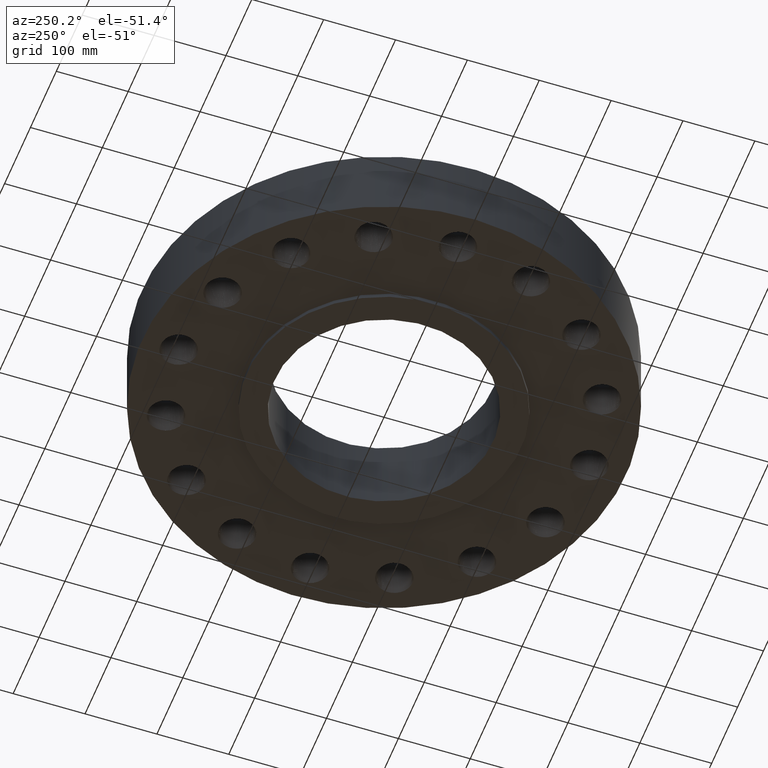
[diagram: clean part render]
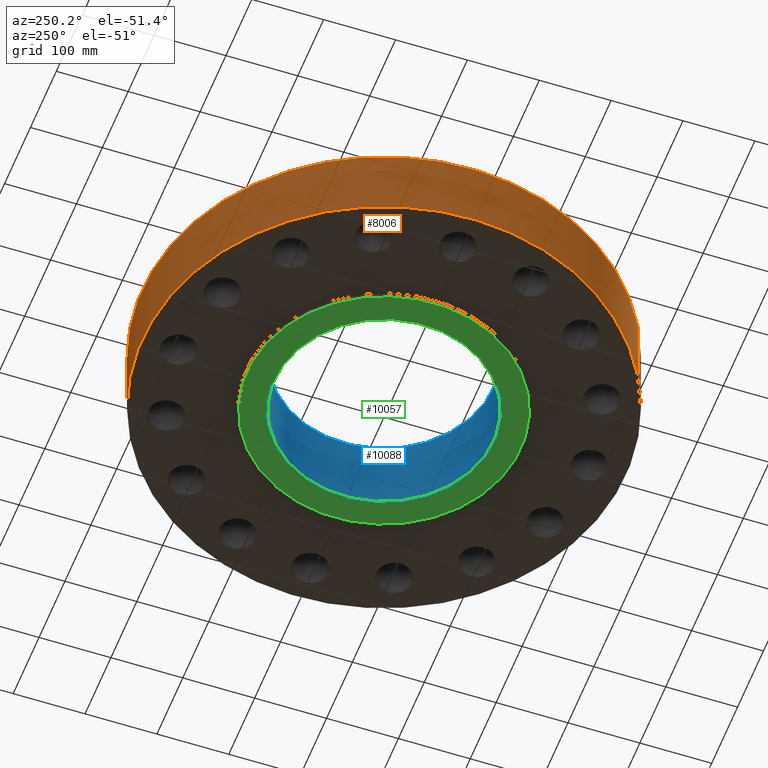
[diagram: same view with three faces highlighted in distinct colors, each labeled with its STEP entity id]
A machine part, auxiliary view with three faces highlighted in distinct colors.
Their STEP definitions:

[orange] entity #8006 — the highlighted cylindrical surface (partial cylindrical patch) has radius 336.55 mm, axis along (0, 0, -1).
#7214=AXIS2_PLACEMENT_3D('Circle Axis2P3D',#7212,#7213,$) ;
#7979=AXIS2_PLACEMENT_3D('Cylinder Axis2P3D',#7976,#7977,#7978) ;
#7990=AXIS2_PLACEMENT_3D('Circle Axis2P3D',#7988,#7989,$) ;
#7212=CARTESIAN_POINT('Axis2P3D Location',(0.,0.,0.)) ;
#7216=CARTESIAN_POINT('Vertex',(-6.35238838653,-11.6279689451,-4.41991150591E-014)) ;
#7218=CARTESIAN_POINT('Vertex',(6.35238838653,11.6279689451,-4.41991150591E-014)) ;
#7976=CARTESIAN_POINT('Axis2P3D Location',(0.,0.,1.93500000001)) ;
#7981=CARTESIAN_POINT('Line Origine',(-6.35238838653,-11.6279689451,2.06000000001)) ;
#7985=CARTESIAN_POINT('Vertex',(-6.35238838653,-11.6279689451,4.12000000002)) ;
#7988=CARTESIAN_POINT('Axis2P3D Location',(0.,0.,4.12000000002)) ;
#7992=CARTESIAN_POINT('Vertex',(6.35238838653,11.6279689451,4.12000000002)) ;
#7995=CARTESIAN_POINT('Line Origine',(6.35238838653,11.6279689451,2.06000000001)) ;
#7213=DIRECTION('Axis2P3D Direction',(0.,0.,-0.0393700787402)) ;
#7977=DIRECTION('Axis2P3D Direction',(0.,0.,-0.0393700787402)) ;
#7978=DIRECTION('Axis2P3D XDirection',(0.0188750212049,0.0345504945626,0.)) ;
#7982=DIRECTION('Vector Direction',(0.,0.,-0.0393700787402)) ;
#7989=DIRECTION('Axis2P3D Direction',(0.,0.,-0.0393700787402)) ;
#7996=DIRECTION('Vector Direction',(0.,0.,-0.0393700787402)) ;
#7983=VECTOR('Line Direction',#7982,0.0393700787402) ;
#7997=VECTOR('Line Direction',#7996,0.0393700787402) ;
#8001=ORIENTED_EDGE('',*,*,#7220,.F.) ;
#8002=ORIENTED_EDGE('',*,*,#7987,.T.) ;
#8003=ORIENTED_EDGE('',*,*,#7994,.T.) ;
#8004=ORIENTED_EDGE('',*,*,#7999,.F.) ;
#8006=ADVANCED_FACE('PartBody',(#8005),#7980,.T.) ;
#7215=CIRCLE('generated circle',#7214,13.2500000001) ;
#7991=CIRCLE('generated circle',#7990,13.2500000001) ;
#7980=CYLINDRICAL_SURFACE('generated cylinder',#7979,13.2500000001) ;
#7220=EDGE_CURVE('',#7217,#7219,#7215,.T.) ;
#7987=EDGE_CURVE('',#7217,#7986,#7984,.F.) ;
#7994=EDGE_CURVE('',#7986,#7993,#7991,.T.) ;
#7999=EDGE_CURVE('',#7219,#7993,#7998,.F.) ;
#8000=EDGE_LOOP('',(#8001,#8002,#8003,#8004)) ;
#8005=FACE_OUTER_BOUND('',#8000,.T.) ;
#7984=LINE('Line',#7981,#7983) ;
#7998=LINE('Line',#7995,#7997) ;
#7217=VERTEX_POINT('',#7216) ;
#7219=VERTEX_POINT('',#7218) ;
#7986=VERTEX_POINT('',#7985) ;
#7993=VERTEX_POINT('',#7992) ;

[blue] entity #10088 — the highlighted cylindrical surface (partial cylindrical patch) has radius 152.4 mm, axis along (0, 0, -1).
#10041=AXIS2_PLACEMENT_3D('Circle Axis2P3D',#10039,#10040,$) ;
#10061=AXIS2_PLACEMENT_3D('Cylinder Axis2P3D',#10058,#10059,#10060) ;
#10065=AXIS2_PLACEMENT_3D('Circle Axis2P3D',#10063,#10064,$) ;
#10039=CARTESIAN_POINT('Axis2P3D Location',(0.,0.,-0.250000000001)) ;
#10043=CARTESIAN_POINT('Vertex',(2.87655323164,5.26549537136,-0.250000000001)) ;
#10045=CARTESIAN_POINT('Vertex',(-2.87655323164,-5.26549537136,-0.250000000001)) ;
#10058=CARTESIAN_POINT('Axis2P3D Location',(0.,0.,1.93500000001)) ;
#10063=CARTESIAN_POINT('Axis2P3D Location',(0.,0.,4.12000000002)) ;
#10067=CARTESIAN_POINT('Vertex',(2.87655323164,5.26549537136,4.12000000002)) ;
#10069=CARTESIAN_POINT('Vertex',(-2.87655323164,-5.26549537136,4.12000000002)) ;
#10072=CARTESIAN_POINT('Line Origine',(2.87655323164,5.26549537136,1.93500000001)) ;
#10077=CARTESIAN_POINT('Line Origine',(-2.87655323164,-5.26549537136,1.93500000001)) ;
#10040=DIRECTION('Axis2P3D Direction',(0.,0.,-0.0393700787402)) ;
#10059=DIRECTION('Axis2P3D Direction',(0.,0.,-0.0393700787402)) ;
#10060=DIRECTION('Axis2P3D XDirection',(-0.0188750212049,-0.0345504945626,0.)) ;
#10064=DIRECTION('Axis2P3D Direction',(0.,0.,-0.0393700787402)) ;
#10073=DIRECTION('Vector Direction',(0.,0.,-0.0393700787402)) ;
#10078=DIRECTION('Vector Direction',(0.,0.,-0.0393700787402)) ;
#10074=VECTOR('Line Direction',#10073,0.0393700787402) ;
#10079=VECTOR('Line Direction',#10078,0.0393700787402) ;
#10083=ORIENTED_EDGE('',*,*,#10071,.F.) ;
#10084=ORIENTED_EDGE('',*,*,#10076,.T.) ;
#10085=ORIENTED_EDGE('',*,*,#10047,.T.) ;
#10086=ORIENTED_EDGE('',*,*,#10081,.F.) ;
#10088=ADVANCED_FACE('PartBody',(#10087),#10062,.F.) ;
#10042=CIRCLE('generated circle',#10041,6.00000000002) ;
#10066=CIRCLE('generated circle',#10065,6.00000000002) ;
#10062=CYLINDRICAL_SURFACE('generated cylinder',#10061,6.00000000002) ;
#10047=EDGE_CURVE('',#10044,#10046,#10042,.T.) ;
#10071=EDGE_CURVE('',#10068,#10070,#10066,.T.) ;
#10076=EDGE_CURVE('',#10068,#10044,#10075,.T.) ;
#10081=EDGE_CURVE('',#10070,#10046,#10080,.T.) ;
#10082=EDGE_LOOP('',(#10083,#10084,#10085,#10086)) ;
#10087=FACE_OUTER_BOUND('',#10082,.T.) ;
#10075=LINE('Line',#10072,#10074) ;
#10080=LINE('Line',#10077,#10079) ;
#10044=VERTEX_POINT('',#10043) ;
#10046=VERTEX_POINT('',#10045) ;
#10068=VERTEX_POINT('',#10067) ;
#10070=VERTEX_POINT('',#10069) ;

[green] entity #10057 — the highlighted planar face has unit normal (0, 0, -1).
#8026=AXIS2_PLACEMENT_3D('Circle Axis2P3D',#8024,#8025,$) ;
#8052=AXIS2_PLACEMENT_3D('Circle Axis2P3D',#8050,#8051,$) ;
#10033=AXIS2_PLACEMENT_3D('Plane Axis2P3D',#10030,#10031,#10032) ;
#10041=AXIS2_PLACEMENT_3D('Circle Axis2P3D',#10039,#10040,$) ;
#10050=AXIS2_PLACEMENT_3D('Circle Axis2P3D',#10048,#10049,$) ;
#8024=CARTESIAN_POINT('Axis2P3D Location',(0.,0.,-0.250000000001)) ;
#8028=CARTESIAN_POINT('Vertex',(3.59569153955,6.5818692142,-0.250000000001)) ;
#8030=CARTESIAN_POINT('Vertex',(-3.59569153955,-6.5818692142,-0.250000000001)) ;
#8050=CARTESIAN_POINT('Axis2P3D Location',(0.,0.,-0.250000000001)) ;
#10030=CARTESIAN_POINT('Axis2P3D Location',(0.,7.50000000003,-0.250000000001)) ;
#10039=CARTESIAN_POINT('Axis2P3D Location',(0.,0.,-0.250000000001)) ;
#10043=CARTESIAN_POINT('Vertex',(2.87655323164,5.26549537136,-0.250000000001)) ;
#10045=CARTESIAN_POINT('Vertex',(-2.87655323164,-5.26549537136,-0.250000000001)) ;
#10048=CARTESIAN_POINT('Axis2P3D Location',(0.,0.,-0.250000000001)) ;
#8025=DIRECTION('Axis2P3D Direction',(0.,0.,-0.0393700787402)) ;
#8051=DIRECTION('Axis2P3D Direction',(0.,0.,-0.0393700787402)) ;
#10031=DIRECTION('Axis2P3D Direction',(0.,0.,-0.0393700787402)) ;
#10032=DIRECTION('Axis2P3D XDirection',(0.0393700787402,0.,0.)) ;
#10040=DIRECTION('Axis2P3D Direction',(0.,0.,-0.0393700787402)) ;
#10049=DIRECTION('Axis2P3D Direction',(0.,0.,-0.0393700787402)) ;
#10036=ORIENTED_EDGE('',*,*,#8054,.T.) ;
#10037=ORIENTED_EDGE('',*,*,#8032,.T.) ;
#10054=ORIENTED_EDGE('',*,*,#10047,.F.) ;
#10055=ORIENTED_EDGE('',*,*,#10052,.F.) ;
#10056=FACE_BOUND('',#10053,.T.) ;
#10057=ADVANCED_FACE('PartBody',(#10038,#10056),#10034,.T.) ;
#8027=CIRCLE('generated circle',#8026,7.50000000003) ;
#8053=CIRCLE('generated circle',#8052,7.50000000003) ;
#10042=CIRCLE('generated circle',#10041,6.00000000002) ;
#10051=CIRCLE('generated circle',#10050,6.00000000002) ;
#8032=EDGE_CURVE('',#8029,#8031,#8027,.T.) ;
#8054=EDGE_CURVE('',#8031,#8029,#8053,.T.) ;
#10047=EDGE_CURVE('',#10044,#10046,#10042,.T.) ;
#10052=EDGE_CURVE('',#10046,#10044,#10051,.T.) ;
#10035=EDGE_LOOP('',(#10036,#10037)) ;
#10053=EDGE_LOOP('',(#10054,#10055)) ;
#10038=FACE_OUTER_BOUND('',#10035,.T.) ;
#10034=PLANE('',#10033) ;
#8029=VERTEX_POINT('',#8028) ;
#8031=VERTEX_POINT('',#8030) ;
#10044=VERTEX_POINT('',#10043) ;
#10046=VERTEX_POINT('',#10045) ;